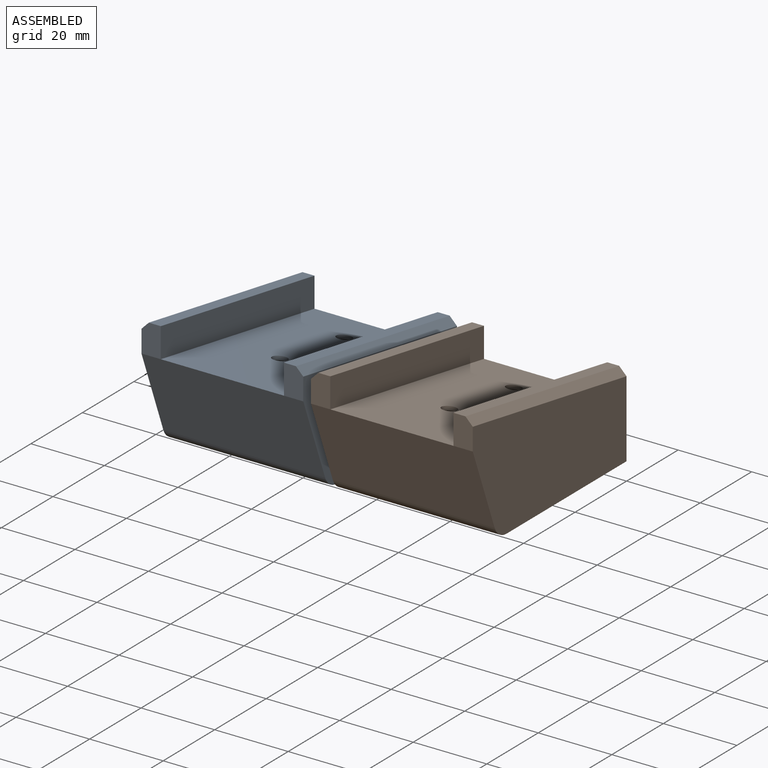
[diagram: assembled view]
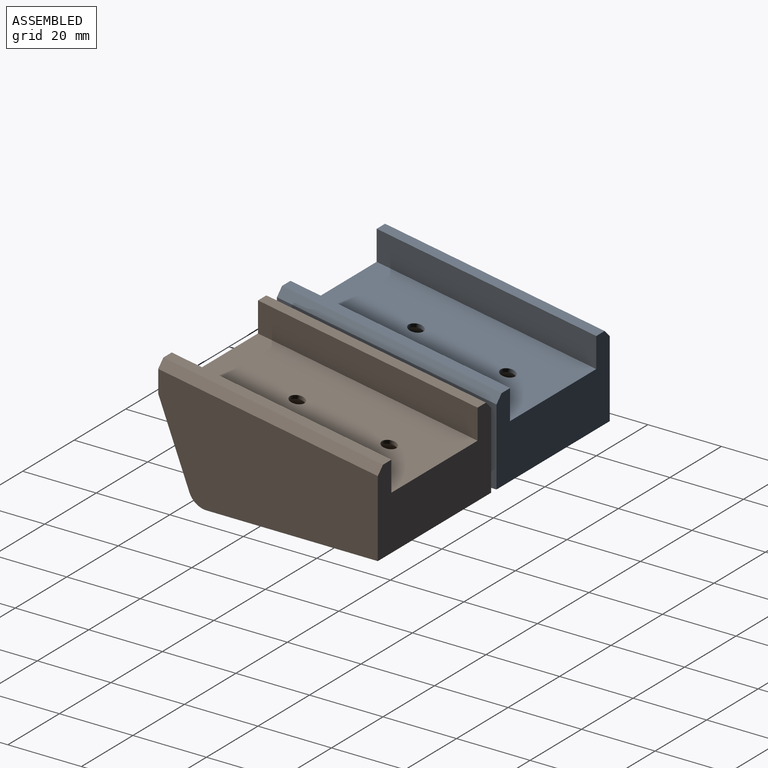
[diagram: assembled view, second angle]
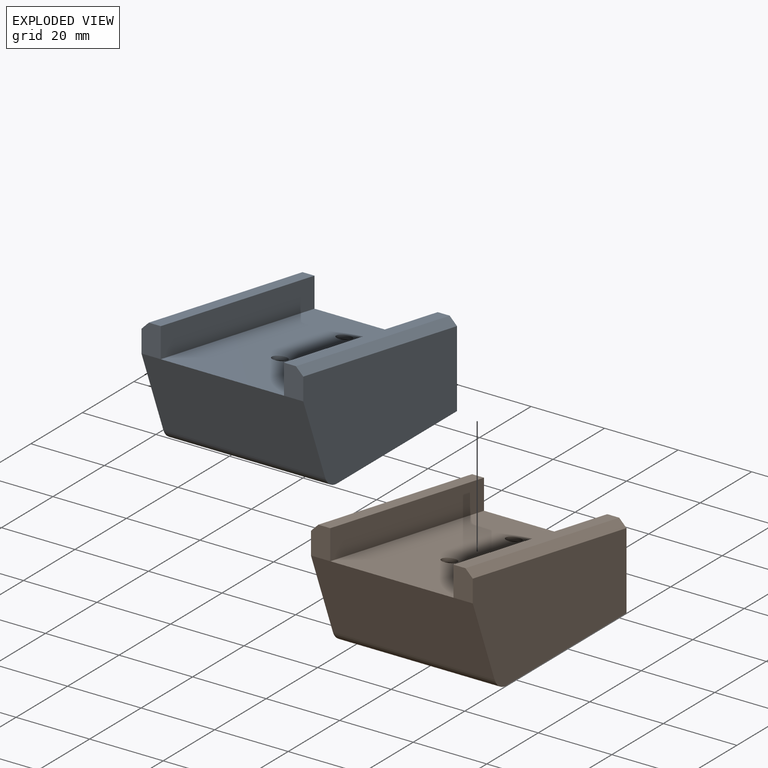
[diagram: exploded view]
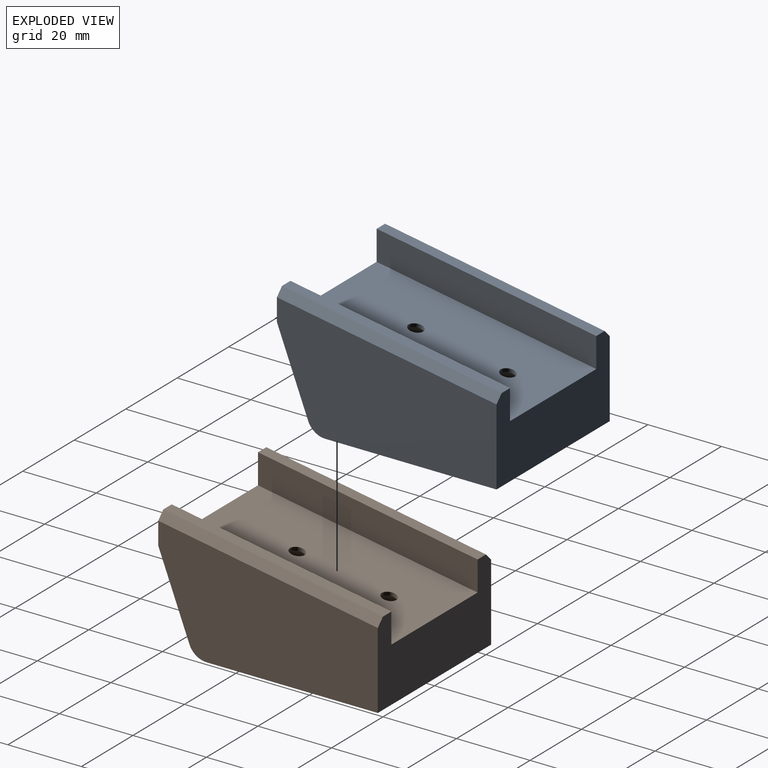
[diagram: exploded view, second angle]
ASSEMBLY  parts=2 mates=2
PART A: 23 faces, bbox 44.4x60.1x33.7 mm
  f0: plane 8.12x5.25mm, normal (0,-1,0), area 40.6mm2, adj f1,f5,f6,f11,f13
  f1: plane 59.72x10.39mm, normal (0,0.17,0.99), area 197mm2, adj f0,f3,f11,f13
  f2: plane 46.57x44mm, normal (0,0,-1), area 1859mm2, adj f3,f4,f5,f7,f16,f18
  f3: plane 44x22.92mm, normal (0,1,0), area 732.4mm2, adj f1,f2,f4,f5,f9,f10,f11,f12
  f4: plane 59.72x31.28mm, normal (1,0,0), area 1433.2mm2, adj f2,f3,f6,f7,f8,f14
  f5: plane 59.72x31.28mm, normal (-1,0,0), area 1433.2mm2, adj f0,f2,f3,f6,f7,f13
  f6: plane 44x21.99mm, normal (0,-0.93,-0.36), area 1037.1mm2, adj f0,f4,f5,f7,f8,f10
  f7: cylinder r=5mm len=44mm, axis (-1,0,0), area 264.6mm2, adj f2,f4,f5,f6
  f8: plane 8.12x5.25mm, normal (0,-1,0), area 40.6mm2, adj f4,f6,f9,f12,f14
  f9: plane 59.72x10.39mm, normal (0,0.17,0.99), area 197mm2, adj f3,f8,f12,f14
  f10: plane 59.78x33.56mm, normal (0,0.17,0.99), area 2005.5mm2, adj f3,f6,f11,f12,f19,f20
  f11: plane 59.72x18.51mm, normal (1,0,0), area 484.9mm2, adj f0,f1,f3,f10
  f12: plane 59.72x18.51mm, normal (-1,0,0), area 484.9mm2, adj f3,f8,f9,f10
  f13: plane 59.72x12.42mm, normal (-0.71,0.12,0.7), area 171.4mm2, adj f0,f1,f3,f5
  f14: plane 59.72x12.42mm, normal (0.71,0.12,0.7), area 171.4mm2, adj f3,f4,f8,f9
  f15: plane 11.39x11.39mm, normal (0.01,-0.17,-0.99), area 17.9mm2, adj f16,f22
  f16: cylinder r=5.5mm len=13.96mm, axis (0,0,-1), area 450.4mm2, adj f2,f15
  f17: plane 11.39x11.39mm, normal (0.01,-0.17,-0.99), area 17.9mm2, adj f18,f21
  f18: cylinder r=5.5mm len=18.31mm, axis (0,0,-1), area 600.7mm2, adj f2,f17
  f19: cylinder r=2mm len=4.11mm, axis (0.01,-0.17,-0.99), area 12.4mm2, adj f10,f21
  f20: cylinder r=2mm len=4.11mm, axis (0.01,-0.17,-0.99), area 12.4mm2, adj f10,f22
  f21: cone r=2mm half-angle=45deg, axis (0.01,-0.17,-0.99), area 93.3mm2, adj f17,f19
  f22: cone r=2mm half-angle=45deg, axis (0.01,-0.17,-0.99), area 93.3mm2, adj f15,f20
PART B: same geometry as A
PLACE A t=(-46.1,0,0)mm
PLACE B at identity fixed
MATE planar A.f18 <-> B.f16  axis (0,0,-1) through (-46.1,-38,0)mm
MATE planar B.f3 <-> A.f3  axis (0,1,0) through (0,0,8.65)mm
